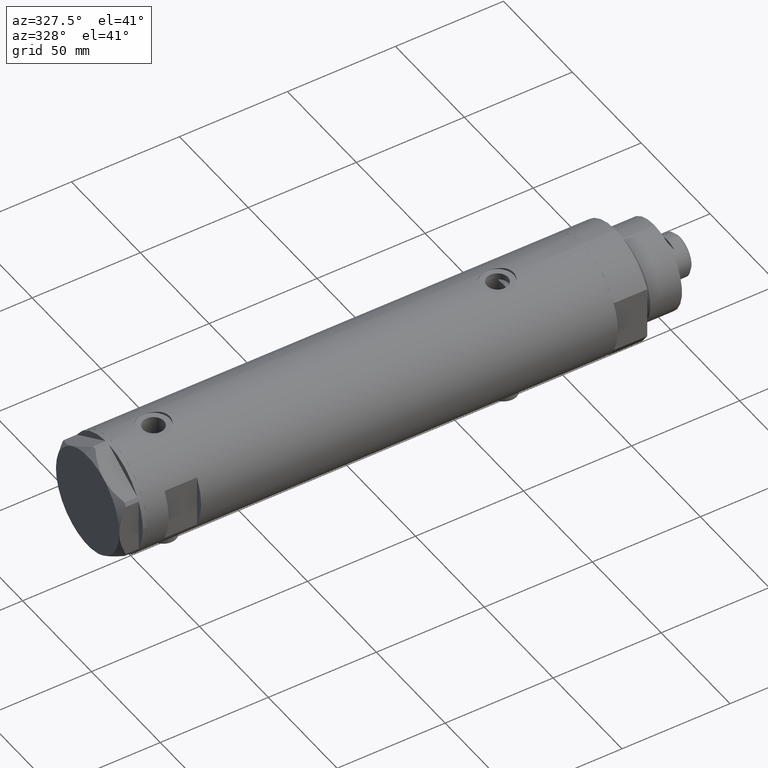
[diagram: clean part render]
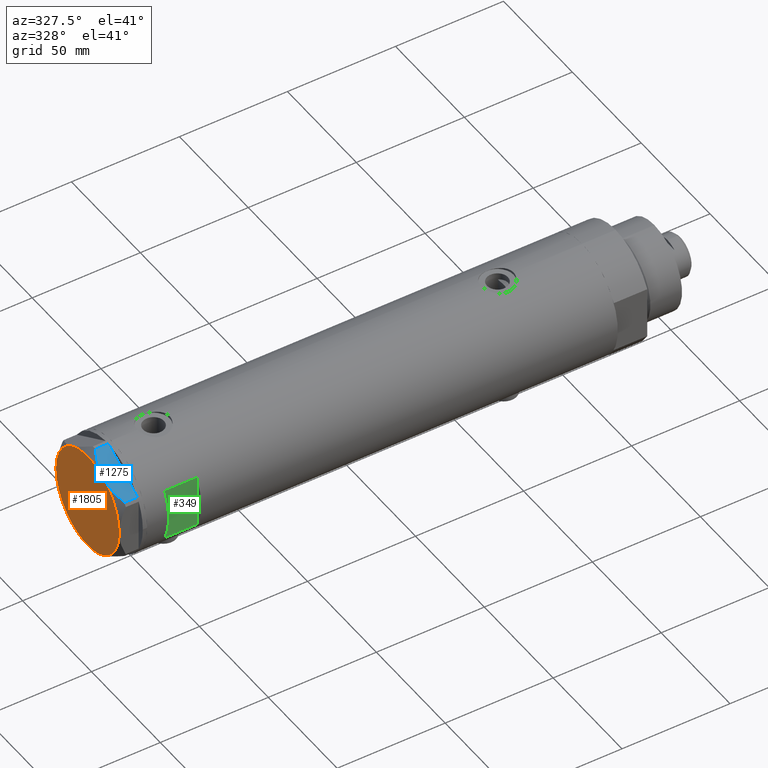
[diagram: same view with three faces highlighted in distinct colors, each labeled with its STEP entity id]
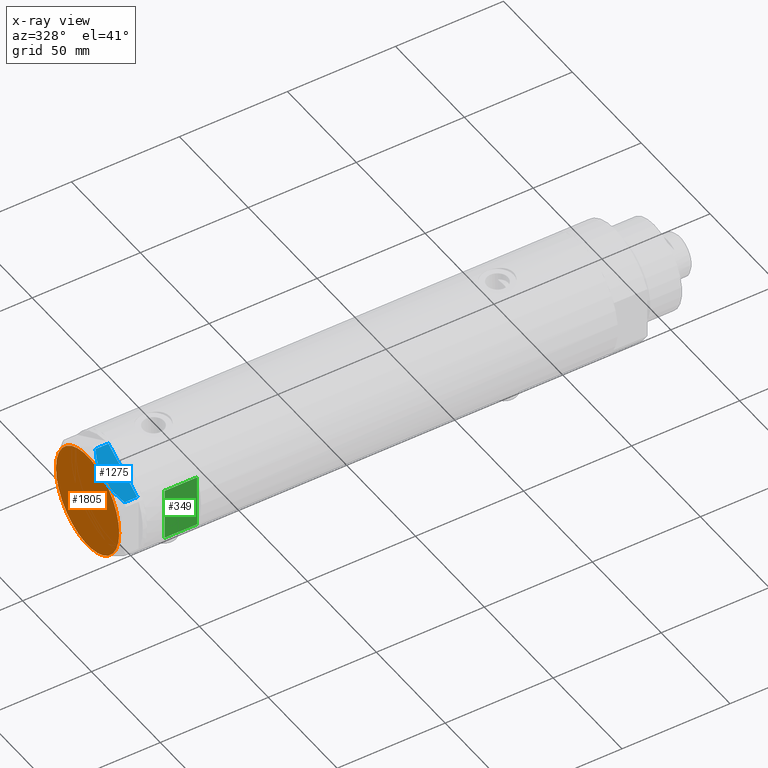
[diagram: x-ray of the same camera — body ghosted, the three highlighted faces saturated]
A machine part, auxiliary view with three faces highlighted in distinct colors.
The next image is the same camera in x-ray (body ghosted, the three faces saturated) — at least one of them is partly hidden behind the body in this view.
Their STEP definitions:

[orange] entity #1805 — the highlighted planar face has unit normal (-1, -0, 0).
#69 = AXIS2_PLACEMENT_3D ( 'NONE', #2125, #3337, #1124 ) ;
#113 = CIRCLE ( 'NONE', #3570, 23.00000000000004619 ) ;
#202 = AXIS2_PLACEMENT_3D ( 'NONE', #2735, #567, #521 ) ;
#233 = CARTESIAN_POINT ( 'NONE',  ( 0.000000000000000000, 0.000000000000000000, 9.000000000000000000 ) ) ;
#258 = VERTEX_POINT ( 'NONE', #4480 ) ;
#521 = DIRECTION ( 'NONE',  ( 1.000000000000000000, 0.000000000000000000, 0.000000000000000000 ) ) ;
#536 = VERTEX_POINT ( 'NONE', #3666 ) ;
#567 = DIRECTION ( 'NONE',  ( 0.000000000000000000, 0.000000000000000000, 1.000000000000000000 ) ) ;
#599 = DIRECTION ( 'NONE',  ( 1.000000000000000000, 0.000000000000000000, 0.000000000000000000 ) ) ;
#610 = VERTEX_POINT ( 'NONE', #1013 ) ;
#617 = CIRCLE ( 'NONE', #3293, 23.00000000000004619 ) ;
#621 = CARTESIAN_POINT ( 'NONE',  ( 0.000000000000000000, 0.000000000000000000, 9.000000000000000000 ) ) ;
#709 = DIRECTION ( 'NONE',  ( 0.000000000000000000, 0.000000000000000000, 1.000000000000000000 ) ) ;
#921 = AXIS2_PLACEMENT_3D ( 'NONE', #1757, #3264, #4375 ) ;
#1013 = CARTESIAN_POINT ( 'NONE',  ( 22.99999999999995026, 2.373657066004705010E-13, 9.000000000000000000 ) ) ;
#1017 = CIRCLE ( 'NONE', #69, 23.00000000000004619 ) ;
#1044 = VERTEX_POINT ( 'NONE', #2734 ) ;
#1045 = DIRECTION ( 'NONE',  ( 1.000000000000000000, 0.000000000000000000, -0.000000000000000000 ) ) ;
#1092 = ORIENTED_EDGE ( 'NONE', *, *, #4404, .T. ) ;
#1102 = CARTESIAN_POINT ( 'NONE',  ( 0.000000000000000000, 0.000000000000000000, 9.000000000000000000 ) ) ;
#1124 = DIRECTION ( 'NONE',  ( 1.000000000000000000, 0.000000000000000000, 0.000000000000000000 ) ) ;
#1342 = DIRECTION ( 'NONE',  ( 1.000000000000000000, 0.000000000000000000, 0.000000000000000000 ) ) ;
#1413 = ORIENTED_EDGE ( 'NONE', *, *, #4759, .T. ) ;
#1658 = ORIENTED_EDGE ( 'NONE', *, *, #1749, .T. ) ;
#1673 = ORIENTED_EDGE ( 'NONE', *, *, #4342, .T. ) ;
#1749 = EDGE_CURVE ( 'NONE', #1044, #258, #113, .T. ) ;
#1757 = CARTESIAN_POINT ( 'NONE',  ( 0.000000000000000000, 0.000000000000000000, 9.000000000000000000 ) ) ;
#1805 = ADVANCED_FACE ( 'NONE', ( #2901 ), #4094, .T. ) ;
#2076 = EDGE_LOOP ( 'NONE', ( #1092, #1413, #1673, #2652, #3070, #1658 ) ) ;
#2125 = CARTESIAN_POINT ( 'NONE',  ( 0.000000000000000000, 0.000000000000000000, 9.000000000000000000 ) ) ;
#2133 = EDGE_CURVE ( 'NONE', #4325, #1044, #4287, .T. ) ;
#2185 = CIRCLE ( 'NONE', #4631, 23.00000000000004619 ) ;
#2652 = ORIENTED_EDGE ( 'NONE', *, *, #4218, .T. ) ;
#2734 = CARTESIAN_POINT ( 'NONE',  ( -11.49999999999990585, -19.91858428704219364, 9.000000000000000000 ) ) ;
#2735 = CARTESIAN_POINT ( 'NONE',  ( 0.000000000000000000, 0.000000000000000000, 9.000000000000000000 ) ) ;
#2883 = CARTESIAN_POINT ( 'NONE',  ( -23.00000000000004619, -8.112498833180673323E-14, 9.000000000000000000 ) ) ;
#2901 = FACE_OUTER_BOUND ( 'NONE', #2076, .T. ) ;
#2975 = CARTESIAN_POINT ( 'NONE',  ( -11.50000000000004441, 19.91858428704211548, 9.000000000000000000 ) ) ;
#3030 = CIRCLE ( 'NONE', #921, 23.00000000000004619 ) ;
#3070 = ORIENTED_EDGE ( 'NONE', *, *, #2133, .T. ) ;
#3264 = DIRECTION ( 'NONE',  ( 0.000000000000000000, 0.000000000000000000, 1.000000000000000000 ) ) ;
#3293 = AXIS2_PLACEMENT_3D ( 'NONE', #621, #3972, #599 ) ;
#3337 = DIRECTION ( 'NONE',  ( 0.000000000000000000, 0.000000000000000000, 1.000000000000000000 ) ) ;
#3457 = VERTEX_POINT ( 'NONE', #2975 ) ;
#3570 = AXIS2_PLACEMENT_3D ( 'NONE', #233, #4708, #1342 ) ;
#3666 = CARTESIAN_POINT ( 'NONE',  ( 11.49999999999990408, 19.91858428704219364, 9.000000000000000000 ) ) ;
#3708 = DIRECTION ( 'NONE',  ( 0.000000000000000000, 0.000000000000000000, 1.000000000000000000 ) ) ;
#3972 = DIRECTION ( 'NONE',  ( 0.000000000000000000, 0.000000000000000000, 1.000000000000000000 ) ) ;
#4024 = CARTESIAN_POINT ( 'NONE',  ( 0.000000000000000000, 0.000000000000000000, 9.000000000000000000 ) ) ;
#4094 = PLANE ( 'NONE',  #4513 ) ;
#4218 = EDGE_CURVE ( 'NONE', #3457, #4325, #3030, .T. ) ;
#4287 = CIRCLE ( 'NONE', #202, 23.00000000000004619 ) ;
#4325 = VERTEX_POINT ( 'NONE', #2883 ) ;
#4342 = EDGE_CURVE ( 'NONE', #536, #3457, #1017, .T. ) ;
#4375 = DIRECTION ( 'NONE',  ( 1.000000000000000000, 0.000000000000000000, 0.000000000000000000 ) ) ;
#4404 = EDGE_CURVE ( 'NONE', #258, #610, #2185, .T. ) ;
#4480 = CARTESIAN_POINT ( 'NONE',  ( 11.50000000000018296, -19.91858428704203732, 9.000000000000000000 ) ) ;
#4490 = DIRECTION ( 'NONE',  ( 1.000000000000000000, 0.000000000000000000, 0.000000000000000000 ) ) ;
#4513 = AXIS2_PLACEMENT_3D ( 'NONE', #4024, #709, #1045 ) ;
#4631 = AXIS2_PLACEMENT_3D ( 'NONE', #1102, #3708, #4490 ) ;
#4708 = DIRECTION ( 'NONE',  ( 0.000000000000000000, 0.000000000000000000, 1.000000000000000000 ) ) ;
#4759 = EDGE_CURVE ( 'NONE', #610, #536, #617, .T. ) ;

[blue] entity #1275 — the highlighted planar face has unit normal (-0, 0.5, -0.866).
#16 = CARTESIAN_POINT ( 'NONE',  ( -1.799196345398571983, -25.51934588838179607, 6.431317509510369845 ) ) ;
#163 = CARTESIAN_POINT ( 'NONE',  ( -22.03005154776146313, -13.83905619136139364, 5.983800287807550689 ) ) ;
#223 = EDGE_LOOP ( 'NONE', ( #4488, #4406, #4095, #2978, #2414, #563, #2016 ) ) ;
#240 = B_SPLINE_CURVE_WITH_KNOTS ( 'NONE', 3,
 ( #163, #560, #1657, #4327, #1229, #2401, #2335, #2425, #1587, #4694 ),
 .UNSPECIFIED., .F., .F.,
 ( 4, 2, 2, 2, 4 ),
 ( 0.001228959670438514989, 0.007497079744270818830, 0.01063113978118697227, 0.01219816979964504812, 0.01376519981810312397 ),
 .UNSPECIFIED. ) ;
#268 = DIRECTION ( 'NONE',  ( 0.8660254037844415942, -0.4999999999999950595, 0.000000000000000000 ) ) ;
#395 = DIRECTION ( 'NONE',  ( -0.8660254037844414832, 0.4999999999999950040, 0.000000000000000000 ) ) ;
#531 = CARTESIAN_POINT ( 'NONE',  ( -0.9699484522404678843, -25.99811238272155123, 5.983800287808756835 ) ) ;
#560 = CARTESIAN_POINT ( 'NONE',  ( -20.37350567916426058, -14.79546339452094017, 6.877782426143456362 ) ) ;
#563 = ORIENTED_EDGE ( 'NONE', *, *, #1594, .T. ) ;
#700 = CARTESIAN_POINT ( 'NONE',  ( -22.03005154776132102, -13.83905619136147536, 0.000000000000000000 ) ) ;
#828 = CARTESIAN_POINT ( 'NONE',  ( -9.678244919010385416, -20.97037507344893115, 9.000000000000088818 ) ) ;
#856 = CARTESIAN_POINT ( 'NONE',  ( -22.03005154776132102, -13.83905619136147536, 9.000000000000000000 ) ) ;
#904 = EDGE_CURVE ( 'NONE', #4465, #3587, #2421, .T. ) ;
#964 = DIRECTION ( 'NONE',  ( 0.8660254037844415942, -0.4999999999999950595, 0.000000000000000000 ) ) ;
#1006 = EDGE_CURVE ( 'NONE', #4233, #4465, #1311, .T. ) ;
#1044 = VERTEX_POINT ( 'NONE', #2734 ) ;
#1089 = DIRECTION ( 'NONE',  ( 0.8660254037844415942, -0.4999999999999950595, 0.000000000000000000 ) ) ;
#1109 = FACE_OUTER_BOUND ( 'NONE', #223, .T. ) ;
#1157 = EDGE_CURVE ( 'NONE', #1592, #4810, #4822, .T. ) ;
#1197 = DIRECTION ( 'NONE',  ( 0.000000000000000000, 0.000000000000000000, 1.000000000000000000 ) ) ;
#1229 = CARTESIAN_POINT ( 'NONE',  ( -15.16323225988328538, -17.80361615569431777, 8.637313967156948991 ) ) ;
#1275 = ADVANCED_FACE ( 'NONE', ( #1109 ), #1550, .F. ) ;
#1311 = LINE ( 'NONE', #856, #3793 ) ;
#1550 = PLANE ( 'NONE',  #3965 ) ;
#1551 = CARTESIAN_POINT ( 'NONE',  ( -5.229981517799206614, -23.53858114556453529, 7.892128867758890998 ) ) ;
#1558 = CARTESIAN_POINT ( 'NONE',  ( -0.9999999999997406519, -25.98076211353317433, 0.000000000000000000 ) ) ;
#1587 = CARTESIAN_POINT ( 'NONE',  ( -11.95865151389046588, -19.65378171203314395, 9.000000000000095923 ) ) ;
#1592 = VERTEX_POINT ( 'NONE', #1558 ) ;
#1594 = EDGE_CURVE ( 'NONE', #4810, #4673, #3844, .T. ) ;
#1657 = CARTESIAN_POINT ( 'NONE',  ( -18.67981377008999644, -15.77331687414923778, 7.629374868826104716 ) ) ;
#1717 = CARTESIAN_POINT ( 'NONE',  ( -22.99999999999990408, -13.27905619136147841, 0.000000000000000000 ) ) ;
#1766 = VECTOR ( 'NONE', #1089, 1000.000000000000000 ) ;
#1858 = CARTESIAN_POINT ( 'NONE',  ( -2.640413878808339110, -25.03366871902064261, 6.844201024439214187 ) ) ;
#2016 = ORIENTED_EDGE ( 'NONE', *, *, #2409, .F. ) ;
#2065 = VECTOR ( 'NONE', #268, 1000.000000000000000 ) ;
#2094 = CARTESIAN_POINT ( 'NONE',  ( -0.9699484522383943208, -25.99811238272274494, 0.000000000000000000 ) ) ;
#2289 = VECTOR ( 'NONE', #964, 1000.000000000000000 ) ;
#2331 = EDGE_CURVE ( 'NONE', #3587, #1592, #2949, .T. ) ;
#2335 = CARTESIAN_POINT ( 'NONE',  ( -13.34348161667001698, -18.85424967941148822, 8.907842277728438063 ) ) ;
#2401 = CARTESIAN_POINT ( 'NONE',  ( -13.80210138309694301, -18.58946543380922378, 8.852712638955804181 ) ) ;
#2409 = EDGE_CURVE ( 'NONE', #1044, #4673, #2777, .T. ) ;
#2414 = ORIENTED_EDGE ( 'NONE', *, *, #1157, .T. ) ;
#2421 = LINE ( 'NONE', #4373, #2065 ) ;
#2425 = CARTESIAN_POINT ( 'NONE',  ( -12.41906678023023325, -19.38796083407287085, 8.981686407609506873 ) ) ;
#2567 = DIRECTION ( 'NONE',  ( 0.4999999999999950595, 0.8660254037844415942, -0.000000000000000000 ) ) ;
#2628 = CARTESIAN_POINT ( 'NONE',  ( -4.357207709417335373, -24.04247733877546267, 7.570552255230290406 ) ) ;
#2734 = CARTESIAN_POINT ( 'NONE',  ( -11.49999999999990585, -19.91858428704219364, 9.000000000000000000 ) ) ;
#2777 = B_SPLINE_CURVE_WITH_KNOTS ( 'NONE', 3,
 ( #4849, #828, #2972, #3739, #1551, #2628, #4134, #1858, #16, #4867 ),
 .UNSPECIFIED., .F., .F.,
 ( 4, 2, 2, 2, 4 ),
 ( 0.01376519981810312397, 0.01998941321701459134, 0.02154546656674245428, 0.02310151991647032069, 0.02621362661592604310 ),
 .UNSPECIFIED. ) ;
#2840 = CARTESIAN_POINT ( 'NONE',  ( -22.99999999999990408, -13.27905619136147841, 0.000000000000000000 ) ) ;
#2949 = LINE ( 'NONE', #1717, #1766 ) ;
#2972 = CARTESIAN_POINT ( 'NONE',  ( -7.884645426990268824, -22.00591022298511490, 8.707651728477127762 ) ) ;
#2978 = ORIENTED_EDGE ( 'NONE', *, *, #2331, .T. ) ;
#3170 = VECTOR ( 'NONE', #1197, 1000.000000000000000 ) ;
#3587 = VERTEX_POINT ( 'NONE', #4498 ) ;
#3634 = CARTESIAN_POINT ( 'NONE',  ( -22.03005154776146313, -13.83905619136139364, 5.983800287807550689 ) ) ;
#3739 = CARTESIAN_POINT ( 'NONE',  ( -5.671686373603866294, -23.28356272816335348, 8.040681765829727823 ) ) ;
#3793 = VECTOR ( 'NONE', #4655, 1000.000000000000000 ) ;
#3818 = CARTESIAN_POINT ( 'NONE',  ( -0.9699484522383977625, -25.99811238272274494, 9.000000000000000000 ) ) ;
#3844 = LINE ( 'NONE', #3818, #3170 ) ;
#3965 = AXIS2_PLACEMENT_3D ( 'NONE', #4454, #2567, #395 ) ;
#4095 = ORIENTED_EDGE ( 'NONE', *, *, #904, .T. ) ;
#4127 = EDGE_CURVE ( 'NONE', #4233, #1044, #240, .T. ) ;
#4134 = CARTESIAN_POINT ( 'NONE',  ( -3.925137811031424562, -24.29193301091729396, 7.397272853992039821 ) ) ;
#4233 = VERTEX_POINT ( 'NONE', #3634 ) ;
#4327 = CARTESIAN_POINT ( 'NONE',  ( -16.05322244309625290, -17.28978008384019915, 8.426899937603781865 ) ) ;
#4373 = CARTESIAN_POINT ( 'NONE',  ( -22.99999999999990408, -13.27905619136147841, 0.000000000000000000 ) ) ;
#4406 = ORIENTED_EDGE ( 'NONE', *, *, #1006, .T. ) ;
#4454 = CARTESIAN_POINT ( 'NONE',  ( -22.99999999999990408, -13.27905619136147841, 9.000000000000000000 ) ) ;
#4465 = VERTEX_POINT ( 'NONE', #700 ) ;
#4488 = ORIENTED_EDGE ( 'NONE', *, *, #4127, .F. ) ;
#4498 = CARTESIAN_POINT ( 'NONE',  ( -21.99999999999998224, -13.85640646055105485, 0.000000000000000000 ) ) ;
#4655 = DIRECTION ( 'NONE',  ( -0.000000000000000000, 0.000000000000000000, -1.000000000000000000 ) ) ;
#4673 = VERTEX_POINT ( 'NONE', #531 ) ;
#4694 = CARTESIAN_POINT ( 'NONE',  ( -11.49999999999990585, -19.91858428704219364, 9.000000000000000000 ) ) ;
#4810 = VERTEX_POINT ( 'NONE', #2094 ) ;
#4822 = LINE ( 'NONE', #2840, #2289 ) ;
#4849 = CARTESIAN_POINT ( 'NONE',  ( -11.49999999999990585, -19.91858428704219364, 9.000000000000000000 ) ) ;
#4867 = CARTESIAN_POINT ( 'NONE',  ( -0.9699484522404678843, -25.99811238272155123, 5.983800287808756835 ) ) ;

[green] entity #349 — the highlighted planar face has unit normal (-0, 1, 0).
#13 = VERTEX_POINT ( 'NONE', #1996 ) ;
#52 = CARTESIAN_POINT ( 'NONE',  ( -26.00000000000000355, -23.00000000000000355, 98.95000000000001705 ) ) ;
#266 = CARTESIAN_POINT ( 'NONE',  ( 12.12435565298214080, -23.00000000000000355, -108.9500000000000028 ) ) ;
#302 = ORIENTED_EDGE ( 'NONE', *, *, #3121, .T. ) ;
#349 = ADVANCED_FACE ( 'NONE', ( #2655 ), #3762, .F. ) ;
#721 = EDGE_CURVE ( 'NONE', #3309, #1734, #2960, .T. ) ;
#888 = VECTOR ( 'NONE', #4099, 1000.000000000000000 ) ;
#1028 = CARTESIAN_POINT ( 'NONE',  ( -12.12435565298214080, -23.00000000000000355, 83.95000000000001705 ) ) ;
#1255 = LINE ( 'NONE', #1613, #4458 ) ;
#1613 = CARTESIAN_POINT ( 'NONE',  ( -26.00000000000000355, -23.00000000000000355, 83.95000000000003126 ) ) ;
#1702 = CARTESIAN_POINT ( 'NONE',  ( -26.00000000000000355, -23.00000000000000355, 98.95000000000001705 ) ) ;
#1734 = VERTEX_POINT ( 'NONE', #2741 ) ;
#1750 = LINE ( 'NONE', #1702, #3203 ) ;
#1762 = AXIS2_PLACEMENT_3D ( 'NONE', #52, #2993, #3375 ) ;
#1826 = ORIENTED_EDGE ( 'NONE', *, *, #721, .T. ) ;
#1974 = EDGE_LOOP ( 'NONE', ( #302, #3249, #1826, #3798 ) ) ;
#1996 = CARTESIAN_POINT ( 'NONE',  ( -12.12435565298214080, -23.00000000000000355, 98.95000000000001705 ) ) ;
#2051 = LINE ( 'NONE', #3554, #2696 ) ;
#2400 = DIRECTION ( 'NONE',  ( -0.000000000000000000, -0.000000000000000000, -1.000000000000000000 ) ) ;
#2655 = FACE_OUTER_BOUND ( 'NONE', #1974, .T. ) ;
#2696 = VECTOR ( 'NONE', #2400, 1000.000000000000000 ) ;
#2741 = CARTESIAN_POINT ( 'NONE',  ( 12.12435565298214080, -23.00000000000000355, 98.95000000000001705 ) ) ;
#2960 = LINE ( 'NONE', #266, #888 ) ;
#2993 = DIRECTION ( 'NONE',  ( 0.000000000000000000, 1.000000000000000000, 0.000000000000000000 ) ) ;
#3110 = DIRECTION ( 'NONE',  ( 1.000000000000000000, -0.000000000000000000, -0.000000000000000000 ) ) ;
#3121 = EDGE_CURVE ( 'NONE', #13, #4229, #2051, .T. ) ;
#3203 = VECTOR ( 'NONE', #3602, 1000.000000000000000 ) ;
#3249 = ORIENTED_EDGE ( 'NONE', *, *, #4155, .T. ) ;
#3309 = VERTEX_POINT ( 'NONE', #3726 ) ;
#3375 = DIRECTION ( 'NONE',  ( 0.000000000000000000, -0.000000000000000000, 1.000000000000000000 ) ) ;
#3554 = CARTESIAN_POINT ( 'NONE',  ( -12.12435565298214080, -23.00000000000000355, -108.9500000000000028 ) ) ;
#3602 = DIRECTION ( 'NONE',  ( 1.000000000000000000, -0.000000000000000000, -0.000000000000000000 ) ) ;
#3726 = CARTESIAN_POINT ( 'NONE',  ( 12.12435565298214080, -23.00000000000000355, 83.95000000000001705 ) ) ;
#3762 = PLANE ( 'NONE',  #1762 ) ;
#3798 = ORIENTED_EDGE ( 'NONE', *, *, #4726, .F. ) ;
#4099 = DIRECTION ( 'NONE',  ( 0.000000000000000000, 0.000000000000000000, 1.000000000000000000 ) ) ;
#4155 = EDGE_CURVE ( 'NONE', #4229, #3309, #1255, .T. ) ;
#4229 = VERTEX_POINT ( 'NONE', #1028 ) ;
#4458 = VECTOR ( 'NONE', #3110, 1000.000000000000000 ) ;
#4726 = EDGE_CURVE ( 'NONE', #13, #1734, #1750, .T. ) ;